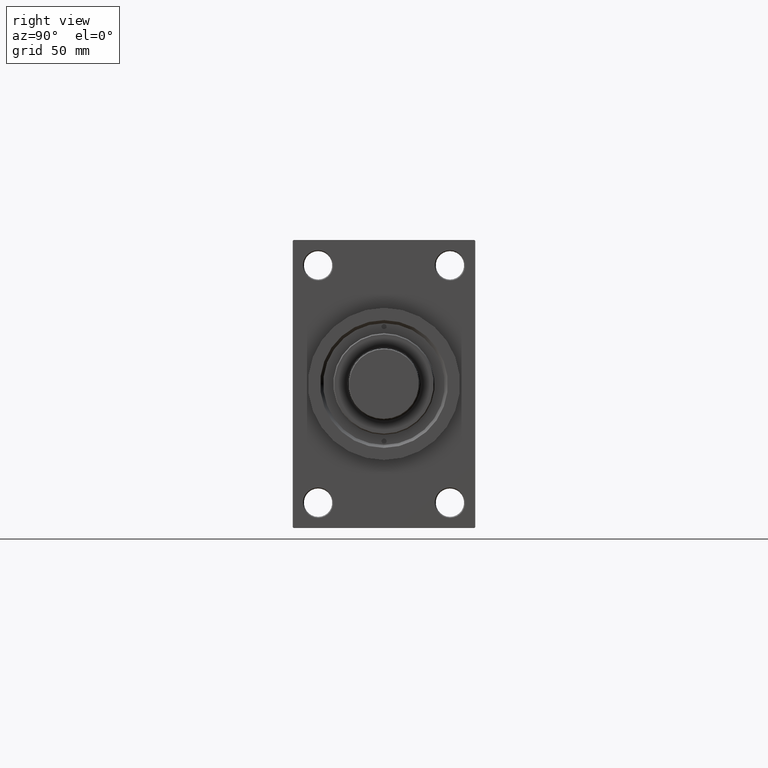
[diagram: clean part render]
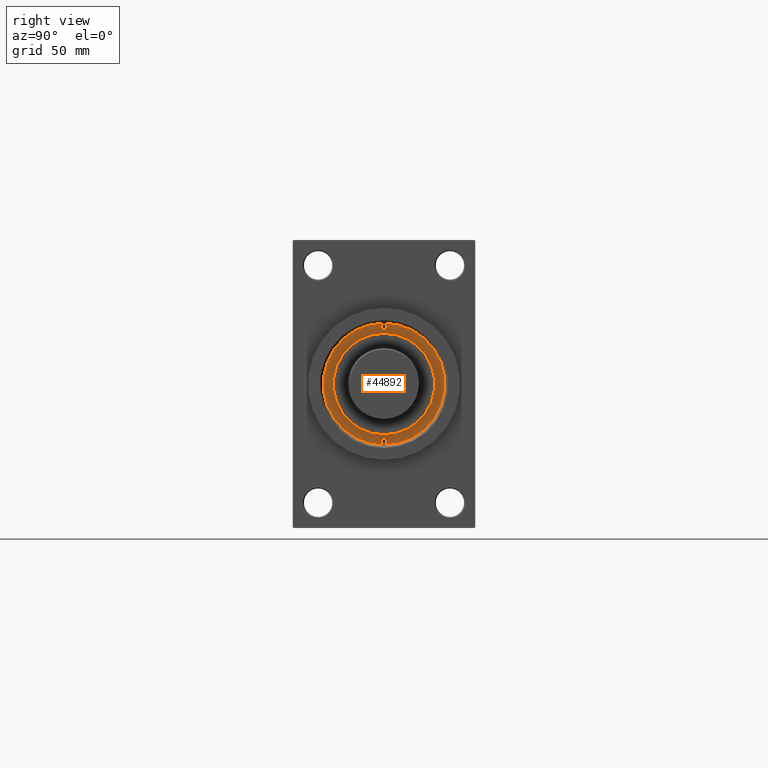
[diagram: same view with one face highlighted and labeled with its STEP entity id]
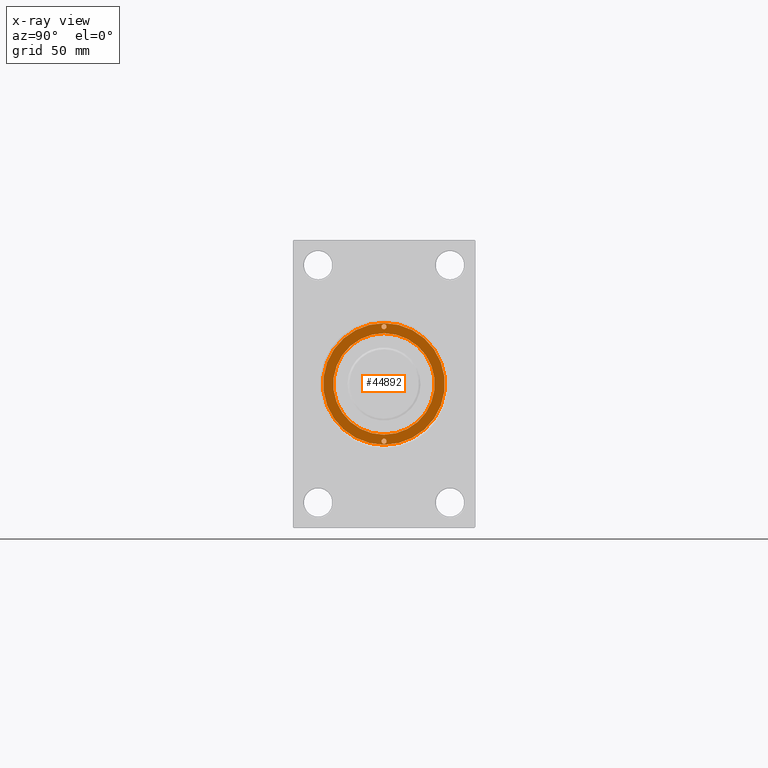
[diagram: x-ray of the same camera — body ghosted, the highlighted face saturated]
A machine part, right view. The second image highlights one B-rep face of the part: STEP entity #44892.
The next image is the same camera in x-ray: the body ghosted, the highlighted face saturated — about 0% of this face is hidden behind the body in this view.
In plain terms, the highlighted planar face has unit normal (1, -0, -0).
Its self-contained STEP definition (entity closure, byte-faithful):
#260 = EDGE_CURVE ( 'NONE', #16791, #3848, #13353, .T. ) ;
#452 = DIRECTION ( 'NONE',  ( 1.000000000000000000, 0.000000000000000000, 0.000000000000000000 ) ) ;
#952 = VERTEX_POINT ( 'NONE', #44386 ) ;
#1309 = VERTEX_POINT ( 'NONE', #11626 ) ;
#1582 = DIRECTION ( 'NONE',  ( 1.000000000000000000, 0.000000000000000000, 0.000000000000000000 ) ) ;
#1854 = CARTESIAN_POINT ( 'NONE',  ( 28.25000000000000000, 0.000000000000000000, 43.25999999999999801 ) ) ;
#2907 = ORIENTED_EDGE ( 'NONE', *, *, #34038, .F. ) ;
#3026 = AXIS2_PLACEMENT_3D ( 'NONE', #34747, #23386, #1582 ) ;
#3451 = DIRECTION ( 'NONE',  ( 0.000000000000000000, 0.000000000000000000, 1.000000000000000000 ) ) ;
#3781 = CIRCLE ( 'NONE', #37050, 30.00000000000000000 ) ;
#3801 = DIRECTION ( 'NONE',  ( 0.000000000000000000, 0.000000000000000000, 1.000000000000000000 ) ) ;
#3848 = VERTEX_POINT ( 'NONE', #17467 ) ;
#5604 = ORIENTED_EDGE ( 'NONE', *, *, #38600, .F. ) ;
#5619 = CARTESIAN_POINT ( 'NONE',  ( 29.50000000000000000, 0.000000000000000000, 43.25999999999999801 ) ) ;
#6650 = DIRECTION ( 'NONE',  ( -0.000000000000000000, -0.000000000000000000, 1.000000000000000000 ) ) ;
#8187 = DIRECTION ( 'NONE',  ( 0.000000000000000000, 0.000000000000000000, 1.000000000000000000 ) ) ;
#8434 = EDGE_LOOP ( 'NONE', ( #24524, #35650 ) ) ;
#10617 = DIRECTION ( 'NONE',  ( 1.000000000000000000, 0.000000000000000000, 0.000000000000000000 ) ) ;
#10744 = VERTEX_POINT ( 'NONE', #5619 ) ;
#11118 = EDGE_CURVE ( 'NONE', #952, #42582, #20528, .T. ) ;
#11353 = EDGE_LOOP ( 'NONE', ( #34264, #38238 ) ) ;
#11545 = AXIS2_PLACEMENT_3D ( 'NONE', #43402, #36839, #40962 ) ;
#11626 = CARTESIAN_POINT ( 'NONE',  ( -30.00000000000000000, 0.000000000000000000, 43.25999999999999801 ) ) ;
#12042 = AXIS2_PLACEMENT_3D ( 'NONE', #37735, #8187, #452 ) ;
#12081 = AXIS2_PLACEMENT_3D ( 'NONE', #37119, #3451, #36409 ) ;
#12283 = DIRECTION ( 'NONE',  ( -0.000000000000000000, -0.000000000000000000, 1.000000000000000000 ) ) ;
#13353 = CIRCLE ( 'NONE', #33413, 1.249999999999997558 ) ;
#14592 = CIRCLE ( 'NONE', #26969, 1.249999999999997558 ) ;
#14850 = FACE_BOUND ( 'NONE', #17901, .T. ) ;
#15003 = CARTESIAN_POINT ( 'NONE',  ( -28.25000000000000000, 0.000000000000000000, 43.25999999999999801 ) ) ;
#16175 = DIRECTION ( 'NONE',  ( 1.000000000000000000, 0.000000000000000000, 0.000000000000000000 ) ) ;
#16791 = VERTEX_POINT ( 'NONE', #39342 ) ;
#17467 = CARTESIAN_POINT ( 'NONE',  ( -29.50000000000000000, 1.530808498934188612E-16, 43.25999999999999801 ) ) ;
#17901 = EDGE_LOOP ( 'NONE', ( #39415, #5604 ) ) ;
#18171 = DIRECTION ( 'NONE',  ( 1.000000000000000000, 0.000000000000000000, 0.000000000000000000 ) ) ;
#18819 = CARTESIAN_POINT ( 'NONE',  ( -28.25000000000000000, 0.000000000000000000, 43.25999999999999801 ) ) ;
#19545 = CARTESIAN_POINT ( 'NONE',  ( 27.00000000000000355, 1.530808498934188612E-16, 43.25999999999999801 ) ) ;
#20528 = CIRCLE ( 'NONE', #12042, 25.00000000000000000 ) ;
#21668 = DIRECTION ( 'NONE',  ( 1.000000000000000000, 0.000000000000000000, 0.000000000000000000 ) ) ;
#23386 = DIRECTION ( 'NONE',  ( 0.000000000000000000, 0.000000000000000000, 1.000000000000000000 ) ) ;
#24140 = DIRECTION ( 'NONE',  ( -0.000000000000000000, -0.000000000000000000, 1.000000000000000000 ) ) ;
#24524 = ORIENTED_EDGE ( 'NONE', *, *, #260, .F. ) ;
#25476 = CIRCLE ( 'NONE', #3026, 30.00000000000000000 ) ;
#26806 = DIRECTION ( 'NONE',  ( 1.000000000000000000, 0.000000000000000000, 0.000000000000000000 ) ) ;
#26969 = AXIS2_PLACEMENT_3D ( 'NONE', #1854, #24140, #16175 ) ;
#27852 = CARTESIAN_POINT ( 'NONE',  ( 30.00000000000000000, 3.673940397442059178E-15, 43.25999999999999801 ) ) ;
#28078 = EDGE_LOOP ( 'NONE', ( #2907, #43480 ) ) ;
#29019 = CARTESIAN_POINT ( 'NONE',  ( 0.000000000000000000, 0.000000000000000000, 43.25999999999999801 ) ) ;
#29614 = FACE_BOUND ( 'NONE', #28078, .T. ) ;
#30221 = EDGE_CURVE ( 'NONE', #3848, #16791, #46362, .T. ) ;
#31205 = EDGE_CURVE ( 'NONE', #1309, #42350, #3781, .T. ) ;
#31254 = VERTEX_POINT ( 'NONE', #19545 ) ;
#32622 = EDGE_CURVE ( 'NONE', #10744, #31254, #14592, .T. ) ;
#32767 = FACE_OUTER_BOUND ( 'NONE', #11353, .T. ) ;
#33413 = AXIS2_PLACEMENT_3D ( 'NONE', #18819, #12283, #26806 ) ;
#33667 = EDGE_CURVE ( 'NONE', #42350, #1309, #25476, .T. ) ;
#34038 = EDGE_CURVE ( 'NONE', #42582, #952, #37816, .T. ) ;
#34264 = ORIENTED_EDGE ( 'NONE', *, *, #31205, .T. ) ;
#34747 = CARTESIAN_POINT ( 'NONE',  ( 0.000000000000000000, 0.000000000000000000, 43.25999999999999801 ) ) ;
#35037 = CARTESIAN_POINT ( 'NONE',  ( -25.00000000000000000, 0.000000000000000000, 43.25999999999999801 ) ) ;
#35650 = ORIENTED_EDGE ( 'NONE', *, *, #30221, .F. ) ;
#36171 = FACE_BOUND ( 'NONE', #8434, .T. ) ;
#36299 = AXIS2_PLACEMENT_3D ( 'NONE', #15003, #36331, #18171 ) ;
#36331 = DIRECTION ( 'NONE',  ( -0.000000000000000000, -0.000000000000000000, 1.000000000000000000 ) ) ;
#36409 = DIRECTION ( 'NONE',  ( 1.000000000000000000, 0.000000000000000000, -0.000000000000000000 ) ) ;
#36839 = DIRECTION ( 'NONE',  ( 0.000000000000000000, 0.000000000000000000, 1.000000000000000000 ) ) ;
#37050 = AXIS2_PLACEMENT_3D ( 'NONE', #29019, #3801, #10617 ) ;
#37119 = CARTESIAN_POINT ( 'NONE',  ( 0.000000000000000000, 0.000000000000000000, 43.25999999999999801 ) ) ;
#37735 = CARTESIAN_POINT ( 'NONE',  ( 0.000000000000000000, 0.000000000000000000, 43.25999999999999801 ) ) ;
#37816 = CIRCLE ( 'NONE', #11545, 25.00000000000000000 ) ;
#38238 = ORIENTED_EDGE ( 'NONE', *, *, #33667, .T. ) ;
#38600 = EDGE_CURVE ( 'NONE', #31254, #10744, #41864, .T. ) ;
#38788 = AXIS2_PLACEMENT_3D ( 'NONE', #40080, #6650, #21668 ) ;
#39342 = CARTESIAN_POINT ( 'NONE',  ( -27.00000000000000355, 0.000000000000000000, 43.25999999999999801 ) ) ;
#39415 = ORIENTED_EDGE ( 'NONE', *, *, #32622, .F. ) ;
#40080 = CARTESIAN_POINT ( 'NONE',  ( 28.25000000000000000, 0.000000000000000000, 43.25999999999999801 ) ) ;
#40962 = DIRECTION ( 'NONE',  ( 1.000000000000000000, 0.000000000000000000, 0.000000000000000000 ) ) ;
#41864 = CIRCLE ( 'NONE', #38788, 1.249999999999997558 ) ;
#42350 = VERTEX_POINT ( 'NONE', #27852 ) ;
#42582 = VERTEX_POINT ( 'NONE', #35037 ) ;
#43402 = CARTESIAN_POINT ( 'NONE',  ( 0.000000000000000000, 0.000000000000000000, 43.25999999999999801 ) ) ;
#43480 = ORIENTED_EDGE ( 'NONE', *, *, #11118, .F. ) ;
#44386 = CARTESIAN_POINT ( 'NONE',  ( 25.00000000000000000, 3.061616997868383043E-15, 43.25999999999999801 ) ) ;
#44398 = PLANE ( 'NONE',  #12081 ) ;
#44892 = ADVANCED_FACE ( 'NONE', ( #36171, #14850, #29614, #32767 ), #44398, .T. ) ;
#46362 = CIRCLE ( 'NONE', #36299, 1.249999999999997558 ) ;